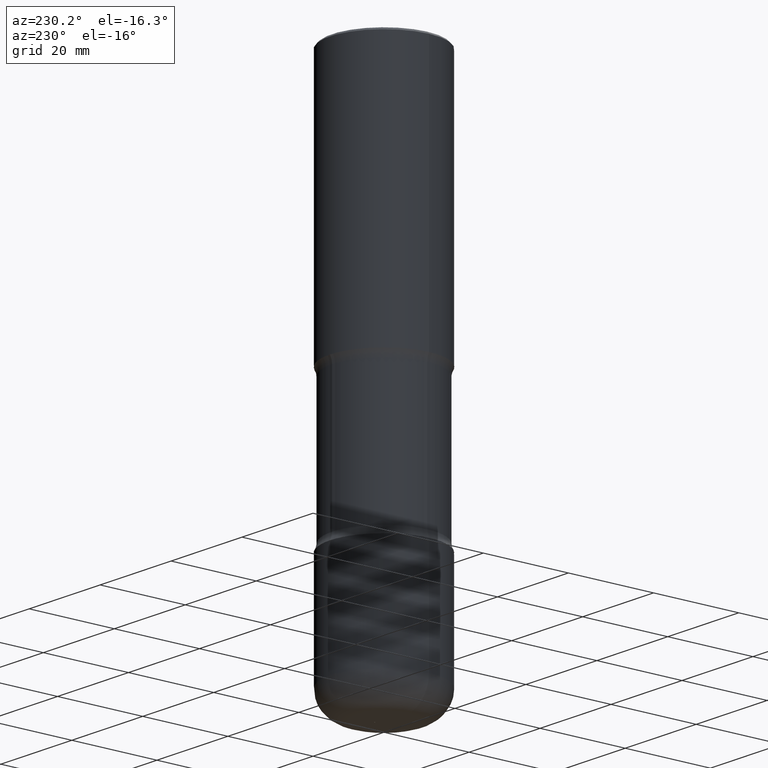
[diagram: clean part render]
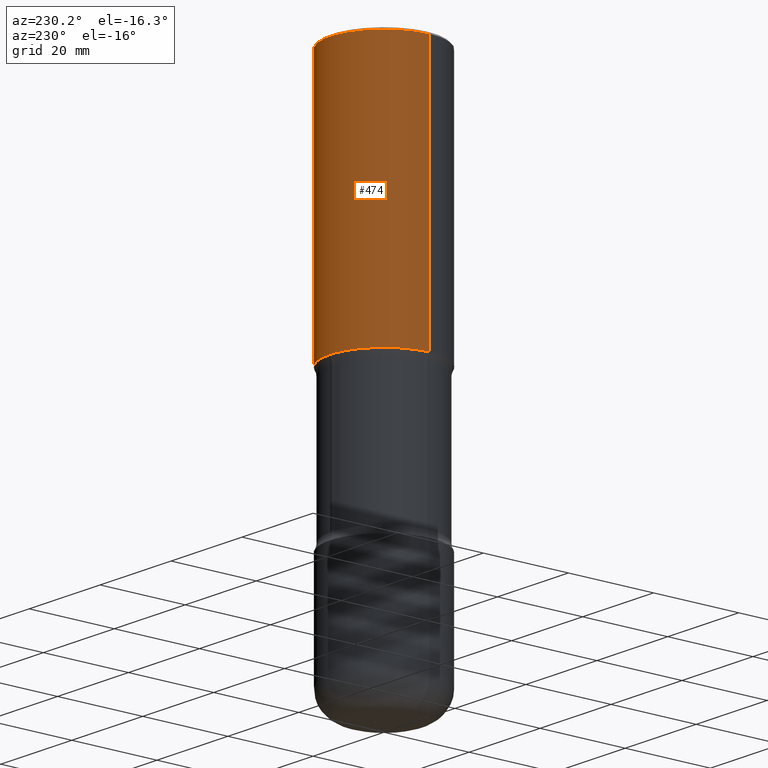
[diagram: same view with one face highlighted and labeled with its STEP entity id]
A machine part, auxiliary view. The second image highlights one B-rep face of the part: STEP entity #474.
In plain terms, the highlighted cylindrical surface (partial cylindrical patch) has radius 12.7 mm, axis along (-0, 0, 1).
Its self-contained STEP definition (entity closure, byte-faithful):
#3 = CARTESIAN_POINT ( 'NONE',  ( 0.4999999999999996669, -3.500078625662626713E-15, -0.02000000000000010797 ) ) ;
#37 = ORIENTED_EDGE ( 'NONE', *, *, #622, .F. ) ;
#43 = VERTEX_POINT ( 'NONE', #615 ) ;
#46 = VERTEX_POINT ( 'NONE', #794 ) ;
#56 = EDGE_CURVE ( 'NONE', #688, #46, #63, .T. ) ;
#63 = LINE ( 'NONE', #308, #692 ) ;
#70 = DIRECTION ( 'NONE',  ( -2.445468806185136597E-29, 3.491481338843145583E-15, 1.000000000000000000 ) ) ;
#131 = AXIS2_PLACEMENT_3D ( 'NONE', #683, #133, #382 ) ;
#133 = DIRECTION ( 'NONE',  ( -2.445468806185136597E-29, 3.491481338843145583E-15, 1.000000000000000000 ) ) ;
#142 = DIRECTION ( 'NONE',  ( 1.000000000000000000, -6.982962677686266711E-15, 0.000000000000000000 ) ) ;
#143 = EDGE_CURVE ( 'NONE', #593, #46, #265, .T. ) ;
#149 = EDGE_LOOP ( 'NONE', ( #761, #259, #360, #37 ) ) ;
#178 = FACE_OUTER_BOUND ( 'NONE', #149, .T. ) ;
#202 = AXIS2_PLACEMENT_3D ( 'NONE', #275, #70, #142 ) ;
#259 = ORIENTED_EDGE ( 'NONE', *, *, #56, .T. ) ;
#263 = DIRECTION ( 'NONE',  ( -2.445468806185136877E-29, 3.491481338843145188E-15, 1.000000000000000000 ) ) ;
#265 = CIRCLE ( 'NONE', #202, 0.4999999999999996669 ) ;
#275 = CARTESIAN_POINT ( 'NONE',  ( 4.890937612370299433E-31, -6.982962677686328587E-17, -0.02000000000000010797 ) ) ;
#280 = VECTOR ( 'NONE', #263, 39.37007874015748143 ) ;
#308 = CARTESIAN_POINT ( 'NONE',  ( -0.4999999999999998335, 3.552713678800499746E-15, -2.459467545127452330E-29 ) ) ;
#310 = CYLINDRICAL_SURFACE ( 'NONE', #644, 0.4999999999999998335 ) ;
#317 = LINE ( 'NONE', #516, #280 ) ;
#360 = ORIENTED_EDGE ( 'NONE', *, *, #143, .F. ) ;
#365 = CARTESIAN_POINT ( 'NONE',  ( 0.000000000000000000, 0.000000000000000000, 0.000000000000000000 ) ) ;
#382 = DIRECTION ( 'NONE',  ( 1.000000000000000000, -6.982962677686265133E-15, 0.000000000000000000 ) ) ;
#474 = ADVANCED_FACE ( 'NONE', ( #178 ), #310, .T. ) ;
#488 = CIRCLE ( 'NONE', #131, 0.5000000000000000000 ) ;
#510 = CARTESIAN_POINT ( 'NONE',  ( -0.5000000000000000000, -6.283352244641658772E-16, -2.375000000000000000 ) ) ;
#516 = CARTESIAN_POINT ( 'NONE',  ( 0.4999999999999998335, -3.491481338843132566E-15, 2.438088387897967336E-29 ) ) ;
#542 = DIRECTION ( 'NONE',  ( -2.445468806185136877E-29, 3.491481338843145188E-15, 1.000000000000000000 ) ) ;
#551 = DIRECTION ( 'NONE',  ( -2.445468806185136597E-29, 3.491481338843145583E-15, 1.000000000000000000 ) ) ;
#593 = VERTEX_POINT ( 'NONE', #3 ) ;
#598 = DIRECTION ( 'NONE',  ( 1.000000000000000000, -6.982962677686267499E-15, 4.876176775795936353E-29 ) ) ;
#615 = CARTESIAN_POINT ( 'NONE',  ( 0.5000000000000000000, -1.178374951859560347E-14, -2.375000000000000000 ) ) ;
#622 = EDGE_CURVE ( 'NONE', #43, #593, #317, .T. ) ;
#644 = AXIS2_PLACEMENT_3D ( 'NONE', #365, #551, #598 ) ;
#683 = CARTESIAN_POINT ( 'NONE',  ( 5.807988414689700538E-29, -8.292268179752471696E-15, -2.375000000000000000 ) ) ;
#688 = VERTEX_POINT ( 'NONE', #510 ) ;
#692 = VECTOR ( 'NONE', #542, 39.37007874015748143 ) ;
#697 = EDGE_CURVE ( 'NONE', #43, #688, #488, .T. ) ;
#761 = ORIENTED_EDGE ( 'NONE', *, *, #697, .T. ) ;
#794 = CARTESIAN_POINT ( 'NONE',  ( -0.4999999999999996669, 3.421651712066267691E-15, -0.02000000000000010797 ) ) ;